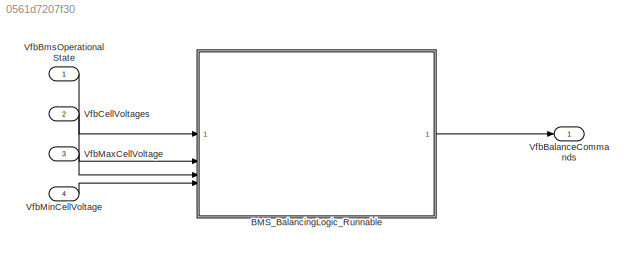
MODEL slx_0561d7207f30
KIND model
CONFIG AbsTol = auto
CONFIG EnableMultiTasking = on
CONFIG FixedStep = auto
CONFIG MaxStep = auto
CONFIG MinStep = auto
CONFIG RelTol = 1e-3
CONFIG SampleTimeConstraint = Unconstrained
CONFIG SolverName = FixedStepDiscrete
CONFIG StartTime = 0.0
CONFIG StopTime = 10.0
WORKSPACE source: external: MAT-File  (data not in archive)
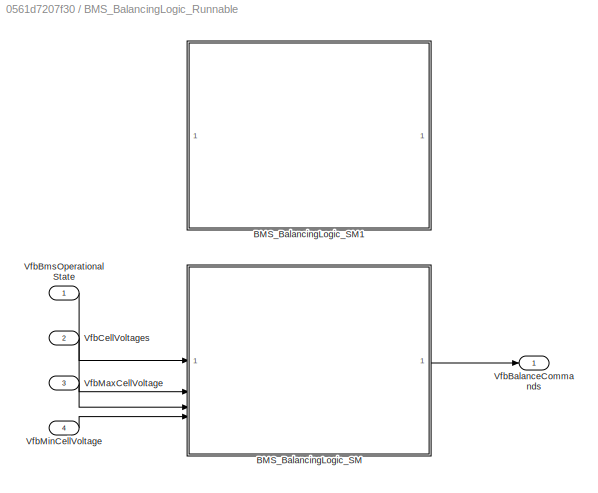
BLOCK [SubSystem] BMS_BalancingLogic_Runnable
  FunctionInterfaceSpec = Allow arguments (Optimized)
  PartitionName = BMS_BalancingLogic_Task
  Priority = 2
  RTWFcnNameOpts = Use subsystem name
  RTWFileNameOpts = Use subsystem name
  RTWSystemCode = Nonreusable function
  ScheduleAs = Periodic partition
  SystemSampleTime = Schedule.BMS_BalancingLogic_Task
  Tag = BMS_BalancingLogic_Task
  TreatAsAtomicUnit = on
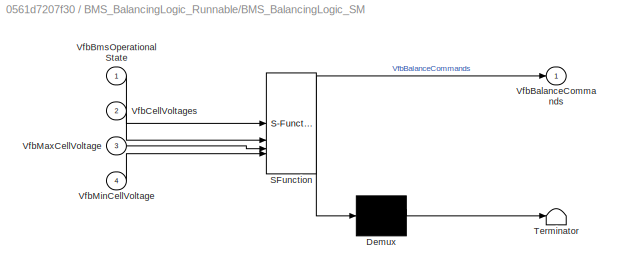
BLOCK [SubSystem] BMS_BalancingLogic_Runnable/BMS_BalancingLogic_SM
  ErrorFcn = Stateflow.Translate.translate
  PermitHierarchicalResolution = ExplicitOnly
  SFBlockType = Chart
  TreatAsAtomicUnit = on
BLOCK [Demux] BMS_BalancingLogic_Runnable/BMS_BalancingLogic_SM/ Demux 
  Outputs = 1
BLOCK [S-Function] BMS_BalancingLogic_Runnable/BMS_BalancingLogic_SM/ SFunction 
  EnableBusSupport = on
  FunctionName = sf_sfun
  PortCounts = [4 2]
  SFcnIsStateOwnerBlock = off
  SFunctionDeploymentMode = off
  Tag = Stateflow S-Function 1
BLOCK [Terminator] BMS_BalancingLogic_Runnable/BMS_BalancingLogic_SM/ Terminator 
BLOCK [Outport] BMS_BalancingLogic_Runnable/BMS_BalancingLogic_SM/VfbBalanceCommands
BLOCK [Inport] BMS_BalancingLogic_Runnable/BMS_BalancingLogic_SM/VfbBmsOperationalState
BLOCK [Inport] BMS_BalancingLogic_Runnable/BMS_BalancingLogic_SM/VfbCellVoltages
  Port = 2
BLOCK [Inport] BMS_BalancingLogic_Runnable/BMS_BalancingLogic_SM/VfbMaxCellVoltage
  Port = 3
BLOCK [Inport] BMS_BalancingLogic_Runnable/BMS_BalancingLogic_SM/VfbMinCellVoltage
  Port = 4
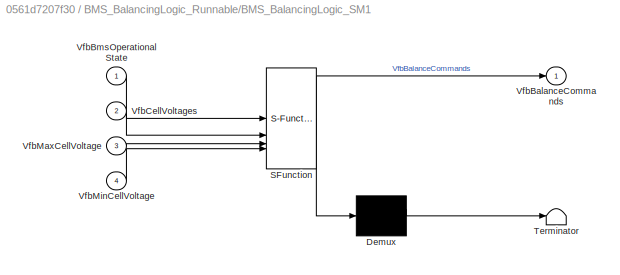
BLOCK [SubSystem] BMS_BalancingLogic_Runnable/BMS_BalancingLogic_SM1
  Commented = on
  ErrorFcn = Stateflow.Translate.translate
  PermitHierarchicalResolution = ExplicitOnly
  SFBlockType = Chart
  TreatAsAtomicUnit = on
BLOCK [Demux] BMS_BalancingLogic_Runnable/BMS_BalancingLogic_SM1/ Demux 
  Outputs = 1
BLOCK [S-Function] BMS_BalancingLogic_Runnable/BMS_BalancingLogic_SM1/ SFunction 
  EnableBusSupport = on
  FunctionName = sf_sfun
  PortCounts = [4 2]
  SFcnIsStateOwnerBlock = off
  SFunctionDeploymentMode = off
  Tag = Stateflow S-Function 3
BLOCK [Terminator] BMS_BalancingLogic_Runnable/BMS_BalancingLogic_SM1/ Terminator 
BLOCK [Outport] BMS_BalancingLogic_Runnable/BMS_BalancingLogic_SM1/VfbBalanceCommands
BLOCK [Inport] BMS_BalancingLogic_Runnable/BMS_BalancingLogic_SM1/VfbBmsOperationalState
BLOCK [Inport] BMS_BalancingLogic_Runnable/BMS_BalancingLogic_SM1/VfbCellVoltages
  Port = 2
BLOCK [Inport] BMS_BalancingLogic_Runnable/BMS_BalancingLogic_SM1/VfbMaxCellVoltage
  Port = 3
BLOCK [Inport] BMS_BalancingLogic_Runnable/BMS_BalancingLogic_SM1/VfbMinCellVoltage
  Port = 4
BLOCK [Outport] BMS_BalancingLogic_Runnable/VfbBalanceCommands
BLOCK [Inport] BMS_BalancingLogic_Runnable/VfbBmsOperationalState
  OutDataTypeStr = Enum: BMS_State_Enum
  PortDimensions = 1
BLOCK [Inport] BMS_BalancingLogic_Runnable/VfbCellVoltages
  Port = 2
BLOCK [Inport] BMS_BalancingLogic_Runnable/VfbMaxCellVoltage
  Port = 3
BLOCK [Inport] BMS_BalancingLogic_Runnable/VfbMinCellVoltage
  Port = 4
BLOCK [Outport] VfbBalanceCommands
BLOCK [Inport] VfbBmsOperationalState
BLOCK [Inport] VfbCellVoltages
  Port = 2
BLOCK [Inport] VfbMaxCellVoltage
  Port = 3
BLOCK [Inport] VfbMinCellVoltage
  Port = 4
LINE BMS_BalancingLogic_Runnable/BMS_BalancingLogic_SM:1 -> BMS_BalancingLogic_Runnable/VfbBalanceCommands:1
LINE BMS_BalancingLogic_Runnable/VfbBmsOperationalState:1 -> BMS_BalancingLogic_Runnable/BMS_BalancingLogic_SM:1
LINE BMS_BalancingLogic_Runnable/VfbCellVoltages:1 -> BMS_BalancingLogic_Runnable/BMS_BalancingLogic_SM:2
LINE BMS_BalancingLogic_Runnable/VfbMaxCellVoltage:1 -> BMS_BalancingLogic_Runnable/BMS_BalancingLogic_SM:3
LINE BMS_BalancingLogic_Runnable/VfbMinCellVoltage:1 -> BMS_BalancingLogic_Runnable/BMS_BalancingLogic_SM:4
LINE BMS_BalancingLogic_Runnable:1 -> VfbBalanceCommands:1
LINE VfbBmsOperationalState:1 -> BMS_BalancingLogic_Runnable:1
LINE VfbCellVoltages:1 -> BMS_BalancingLogic_Runnable:2
LINE VfbMaxCellVoltage:1 -> BMS_BalancingLogic_Runnable:3
LINE VfbMinCellVoltage:1 -> BMS_BalancingLogic_Runnable:4
CHART BMS_BalancingLogic_Runnable/BMS_BalancingLogic_SM states=7 transitions=13
  STATE_LABEL 'out  = ActivateBalancing(MAX, MIN, THR)'
  STATE_LABEL '[ (MAX - MIN) >= (THR - 1e-5) ]'
  STATE_LABEL '{out = false;}'
  STATE_LABEL '{out = true;}'
  STATE_LABEL 'Balancing_Test\n\nen, du:\nBalancingFlag = ActivateBalancing(VfbMaxCellVoltage, VfbMinCellVoltage, BalancingThreshold(state));'
  STATE_LABEL 'Balancing_Logic'
  STATE_LABEL 'SW_Off\n\nen:\nVfbBalanceCommands(:,:) = false;\nstate = 1;\n'
  STATE_LABEL 'Super'
  STATE_LABEL 'BalancingNotActive\n\nen:\nstate = 1;\n'
  STATE_LABEL 'BalancingIsActive\n\nen, du:\nstate = 2;\nVfbBalanceCommands(:,:) = boolean( (VfbCellVoltages - VfbMinCellVoltage)  > BalancingThreshold(state) );\nex:\nVfbBalanceCommands(:,:) = false;\n'  <repeated x3 — deduplicated; at blocks: BMS_BalancingLogic_SM>
  STATE_LABEL '[~BalancingFlag]'
  STATE_LABEL '[BalancingFlag]'
  STATE_LABEL '[VfbBmsOperationalState ~= BMS_State_Enum.BMS_Balancing]'
  STATE_LABEL '[BalancingFlag && ...\nafter(BalancingOffWait, sec)]'
  STATE_LABEL '[after(BalancingOnWait, sec)]'
  STATE_LABEL 'SW_Off\n\nen:\nVfbBalanceCommands(:,:) = false;\nstate = 1;\n'
  STATE_LABEL 'Super'
  STATE_LABEL 'BalancingNotActive\n\nen:\nstate = 1;\n'
  STATE_LABEL '[~BalancingFlag]'
  STATE_LABEL '[BalancingFlag]'
  STATE_LABEL 'BalancingNotActive\n\nen:\nstate = 1;\n'
CHART BMS_BalancingLogic_Runnable/BMS_BalancingLogic_SM1 states=10 transitions=21
  STATE_LABEL 'SW_Off\nen:\nVfbBalanceCommands(:,:) = false;\ndu:\nBalancingFlag = ActivateBalancing(VfbMaxCellVoltage, VfbMinCellVoltage, BalancingThreshold_ON);\n'
  STATE_LABEL 'out  = ActivateBalancing(MAX, MIN, THR)'
  STATE_LABEL '[ (MAX - MIN) >= (THR - 1e-5) ]'
  STATE_LABEL '{out = false;}'
  STATE_LABEL '{out = true;}'
  STATE_LABEL 'Super'
  STATE_LABEL 'BalancingNotActive\nen, du:\nBalancingFlag = ActivateBalancing(VfbMaxCellVoltage, VfbMinCellVoltage, BalancingThreshold_ON);\n'
  STATE_LABEL 'BalancingIsActive\nen, du:\nBalancingFlag = ActivateBalancing( ...\n    VfbMaxCellVoltage, VfbMinCellVoltage, BalancingThreshold_OFF);\nex:\nVfbBalanceCommands(:,:) = false;\n'
  STATE_LABEL 'BalancingActiveMode'
  STATE_LABEL 'SW1_On\nen:\nVfbBalanceCommands(1) = true;\nex:\nVfbBalanceCommands(1) = false;\nstep = 1;'
  STATE_LABEL 'SW_Wait'
  STATE_LABEL 'SW2_On\nen:\nVfbBalanceCommands(2) = true;\nex:\nVfbBalanceCommands(2) = false;\nstep = 2;'
  STATE_LABEL 'after((0.5-Don)/Freq, sec)[step >= 2]'
  STATE_LABEL 'after(Don/Freq - 0.0001, sec)'
  STATE_LABEL 'after((0.5-Don)/Freq, sec)[step <= 1]'
  STATE_LABEL 'after(Don/Freq - 0.0001, sec)'
  STATE_LABEL 'BalancingPassiveMode\nen, du:\nVfbBalanceCommands(:,:) = boolean( ...\n    (VfbCellVoltages - VfbMinCellVoltage) > BalancingThreshold_OFF);'
  STATE_LABEL '[BalancingMode]'
  STATE_LABEL '[~BalancingFlag]'
  STATE_LABEL '[BalancingFlag]'
  STATE_LABEL 'BalancingNotActive\nen, du:\nBalancingFlag = ActivateBalancing(VfbMaxCellVoltage, VfbMinCellVoltage, BalancingThreshold_ON);\n'
  STATE_LABEL 'BalancingIsActive\nen, du:\nBalancingFlag = ActivateBalancing( ...\n    VfbMaxCellVoltage, VfbMinCellVoltage, BalancingThreshold_OFF);\nex:\nVfbBalanceCommands(:,:) = false;\n'
  STATE_LABEL 'BalancingActiveMode'
  STATE_LABEL 'SW1_On\nen:\nVfbBalanceCommands(1) = true;\nex:\nVfbBalanceCommands(1) = false;\nstep = 1;'
  STATE_LABEL 'SW_Wait'
  STATE_LABEL 'SW2_On\nen:\nVfbBalanceCommands(2) = true;\nex:\nVfbBalanceCommands(2) = false;\nstep = 2;'
  STATE_LABEL 'after((0.5-Don)/Freq, sec)[step >= 2]'
  STATE_LABEL 'after(Don/Freq - 0.0001, sec)'
  STATE_LABEL 'after((0.5-Don)/Freq, sec)[step <= 1]'
  STATE_LABEL 'after(Don/Freq - 0.0001, sec)'
  STATE_LABEL 'BalancingPassiveMode\nen, du:\nVfbBalanceCommands(:,:) = boolean( ...\n    (VfbCellVoltages - VfbMinCellVoltage) > BalancingThreshold_OFF);'
  STATE_LABEL '[BalancingMode]'
  STATE_LABEL 'BalancingActiveMode'
  STATE_LABEL 'SW1_On\nen:\nVfbBalanceCommands(1) = true;\nex:\nVfbBalanceCommands(1) = false;\nstep = 1;'
  STATE_LABEL 'SW_Wait'
  STATE_LABEL 'SW2_On\nen:\nVfbBalanceCommands(2) = true;\nex:\nVfbBalanceCommands(2) = false;\nstep = 2;'
  STATE_LABEL 'after((0.5-Don)/Freq, sec)[step >= 2]'
  STATE_LABEL 'after(Don/Freq - 0.0001, sec)'
  STATE_LABEL 'after((0.5-Don)/Freq, sec)[step <= 1]'
  STATE_LABEL 'after(Don/Freq - 0.0001, sec)'
CHART  states=0 transitions=0
CHART  states=0 transitions=0
